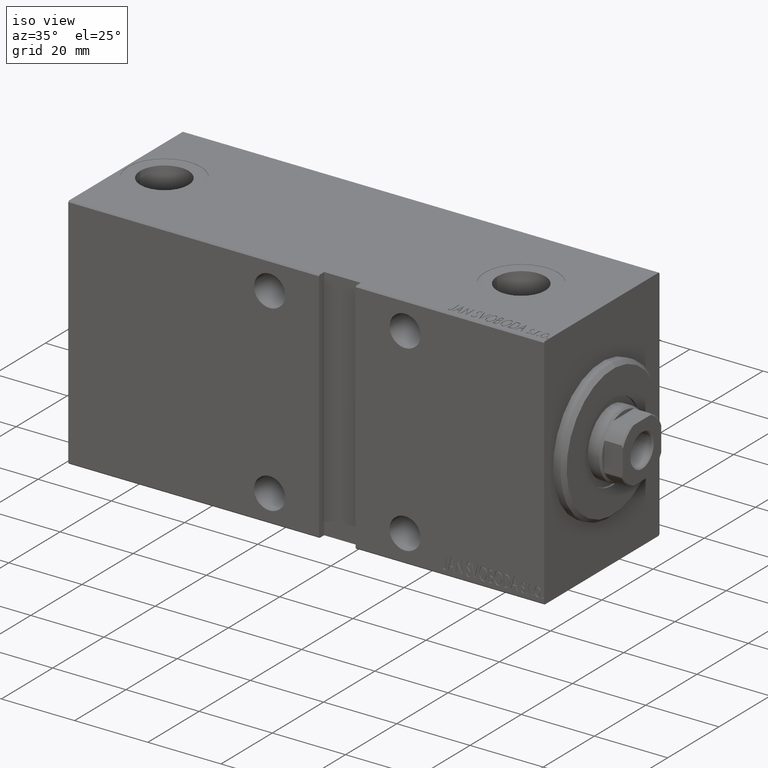
[diagram: clean part render]
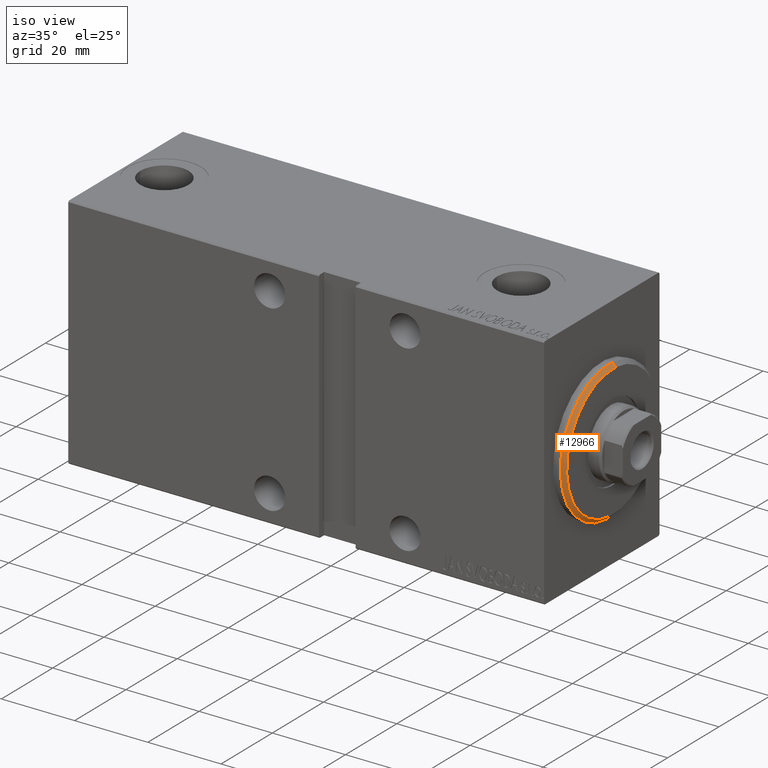
[diagram: same view with one face highlighted and labeled with its STEP entity id]
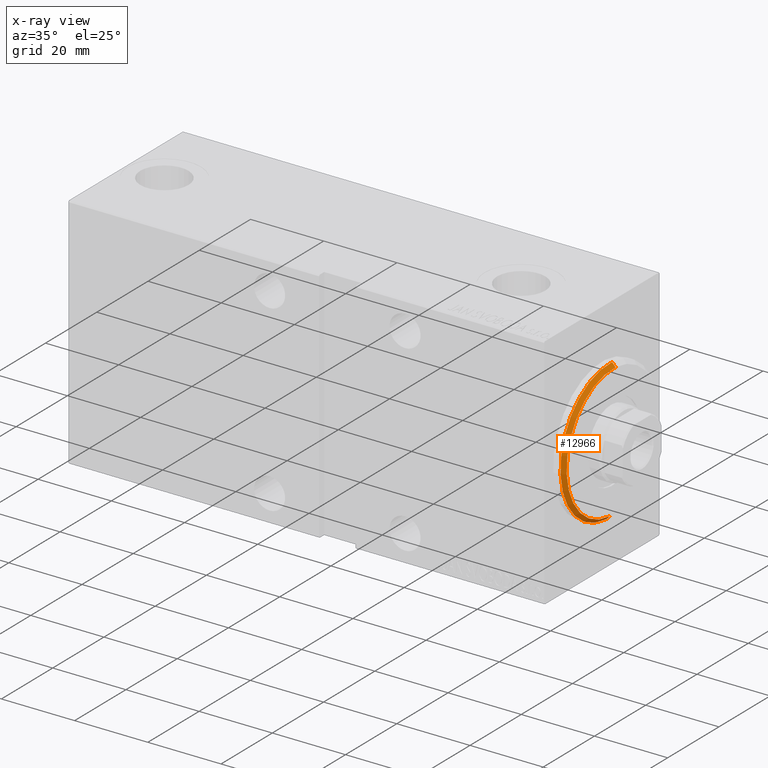
[diagram: x-ray of the same camera — body ghosted, the highlighted face saturated]
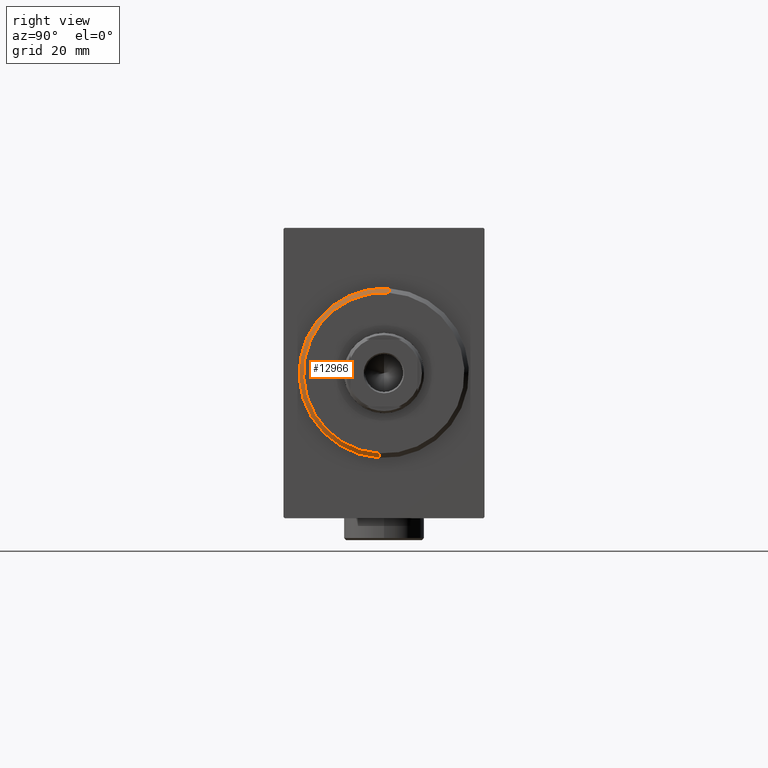
[diagram: same view with one face highlighted and labeled with its STEP entity id]
A machine part, iso view. The second image highlights one B-rep face of the part: STEP entity #12966.
The next image is the same camera in x-ray: the body ghosted, the highlighted face saturated — about 0% of this face is hidden behind the body in this view.
A second angle (right view) of the same face is appended — the face is thin or edge-on in the first view.
In plain terms, the highlighted conical surface has half-angle 45 deg.
Its self-contained STEP definition (entity closure, byte-faithful):
#20 = CARTESIAN_POINT ( 'NONE',  ( 3.000000000000000000, 0.000000000000000000, 17.99999999999999645 ) ) ;
#316 = DIRECTION ( 'NONE',  ( -0.7071067811865487940, 8.659560562354918067E-17, -0.7071067811865463515 ) ) ;
#765 = CARTESIAN_POINT ( 'NONE',  ( 3.000000000000000000, 2.204364238465235033E-15, -17.99999999999999645 ) ) ;
#1311 = DIRECTION ( 'NONE',  ( 0.000000000000000000, 0.000000000000000000, 1.000000000000000000 ) ) ;
#1485 = AXIS2_PLACEMENT_3D ( 'NONE', #18654, #35314, #1311 ) ;
#2792 = VECTOR ( 'NONE', #316, 1000.000000000000000 ) ;
#4487 = DIRECTION ( 'NONE',  ( 0.000000000000000000, 0.000000000000000000, -1.000000000000000000 ) ) ;
#6125 = EDGE_CURVE ( 'NONE', #24101, #15860, #42799, .T. ) ;
#7664 = ORIENTED_EDGE ( 'NONE', *, *, #6125, .F. ) ;
#7731 = EDGE_LOOP ( 'NONE', ( #25441, #7664, #33718, #11284 ) ) ;
#10122 = EDGE_CURVE ( 'NONE', #28320, #23205, #13445, .T. ) ;
#11284 = ORIENTED_EDGE ( 'NONE', *, *, #10122, .F. ) ;
#12210 = CARTESIAN_POINT ( 'NONE',  ( 1.999999999999992228, 0.000000000000000000, 19.00000000000000000 ) ) ;
#12966 = ADVANCED_FACE ( 'NONE', ( #42735 ), #38176, .T. ) ;
#13445 = CIRCLE ( 'NONE', #22060, 19.00000000000000000 ) ;
#14472 = VECTOR ( 'NONE', #20070, 1000.000000000000000 ) ;
#14898 = EDGE_CURVE ( 'NONE', #24101, #23205, #40326, .T. ) ;
#15860 = VERTEX_POINT ( 'NONE', #18540 ) ;
#18540 = CARTESIAN_POINT ( 'NONE',  ( 3.000000000000000000, 2.265596578422603002E-15, -17.99999999999999645 ) ) ;
#18654 = CARTESIAN_POINT ( 'NONE',  ( 3.000000000000000000, 0.000000000000000000, 0.000000000000000000 ) ) ;
#20070 = DIRECTION ( 'NONE',  ( -0.7071067811865487940, 0.000000000000000000, 0.7071067811865463515 ) ) ;
#22060 = AXIS2_PLACEMENT_3D ( 'NONE', #25418, #39157, #4487 ) ;
#22140 = CARTESIAN_POINT ( 'NONE',  ( 3.000000000000000000, 0.000000000000000000, 17.99999999999999645 ) ) ;
#23205 = VERTEX_POINT ( 'NONE', #12210 ) ;
#23381 = AXIS2_PLACEMENT_3D ( 'NONE', #42489, #31687, #35505 ) ;
#24101 = VERTEX_POINT ( 'NONE', #22140 ) ;
#25418 = CARTESIAN_POINT ( 'NONE',  ( 1.999999999999992228, 0.000000000000000000, 0.000000000000000000 ) ) ;
#25441 = ORIENTED_EDGE ( 'NONE', *, *, #43346, .F. ) ;
#28320 = VERTEX_POINT ( 'NONE', #29435 ) ;
#29435 = CARTESIAN_POINT ( 'NONE',  ( 1.999999999999992228, 2.326828918379970970E-15, -19.00000000000000000 ) ) ;
#31627 = LINE ( 'NONE', #765, #2792 ) ;
#31687 = DIRECTION ( 'NONE',  ( 1.000000000000000000, -0.000000000000000000, 0.000000000000000000 ) ) ;
#33718 = ORIENTED_EDGE ( 'NONE', *, *, #14898, .T. ) ;
#35314 = DIRECTION ( 'NONE',  ( -1.000000000000000000, 0.000000000000000000, 0.000000000000000000 ) ) ;
#35505 = DIRECTION ( 'NONE',  ( 0.000000000000000000, 0.000000000000000000, -1.000000000000000000 ) ) ;
#38176 = CONICAL_SURFACE ( 'NONE', #1485, 17.99999999999999645, 0.7853981633974466137 ) ;
#39157 = DIRECTION ( 'NONE',  ( -1.000000000000000000, 0.000000000000000000, 0.000000000000000000 ) ) ;
#40326 = LINE ( 'NONE', #20, #14472 ) ;
#42489 = CARTESIAN_POINT ( 'NONE',  ( 3.000000000000000000, 0.000000000000000000, 0.000000000000000000 ) ) ;
#42735 = FACE_OUTER_BOUND ( 'NONE', #7731, .T. ) ;
#42799 = CIRCLE ( 'NONE', #23381, 17.99999999999999645 ) ;
#43346 = EDGE_CURVE ( 'NONE', #15860, #28320, #31627, .T. ) ;